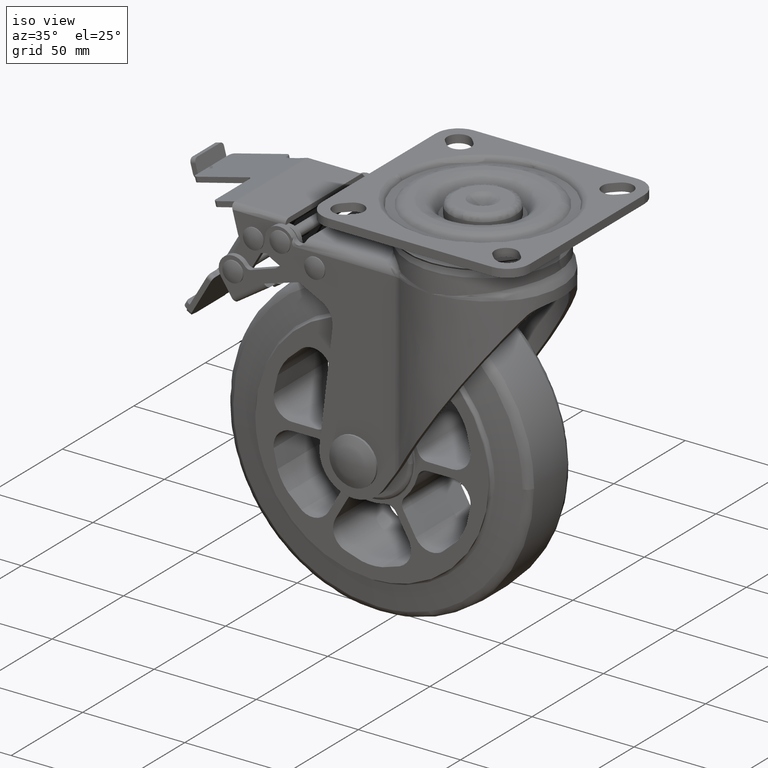
[diagram: clean part render]
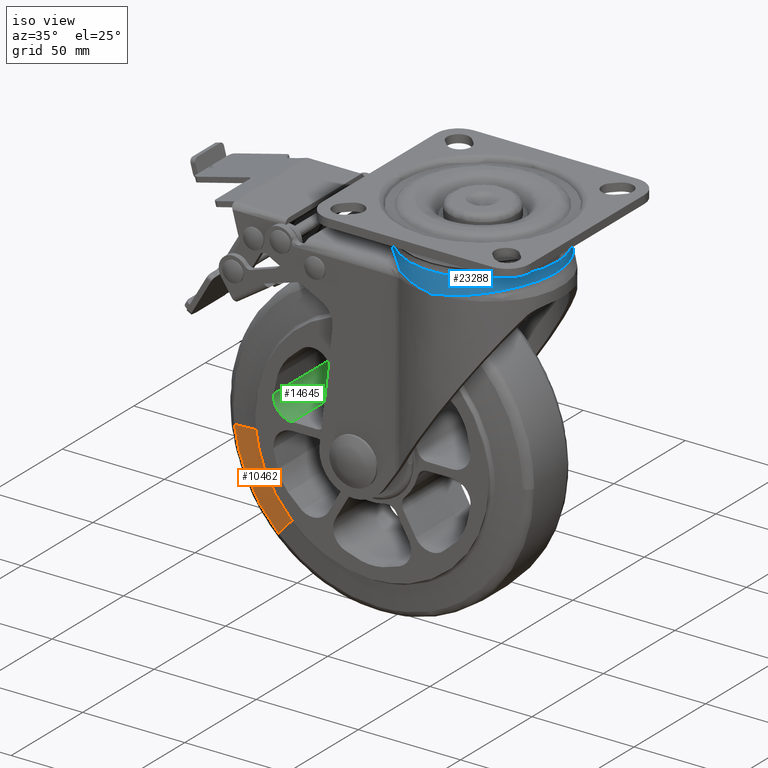
[diagram: same view with three faces highlighted in distinct colors, each labeled with its STEP entity id]
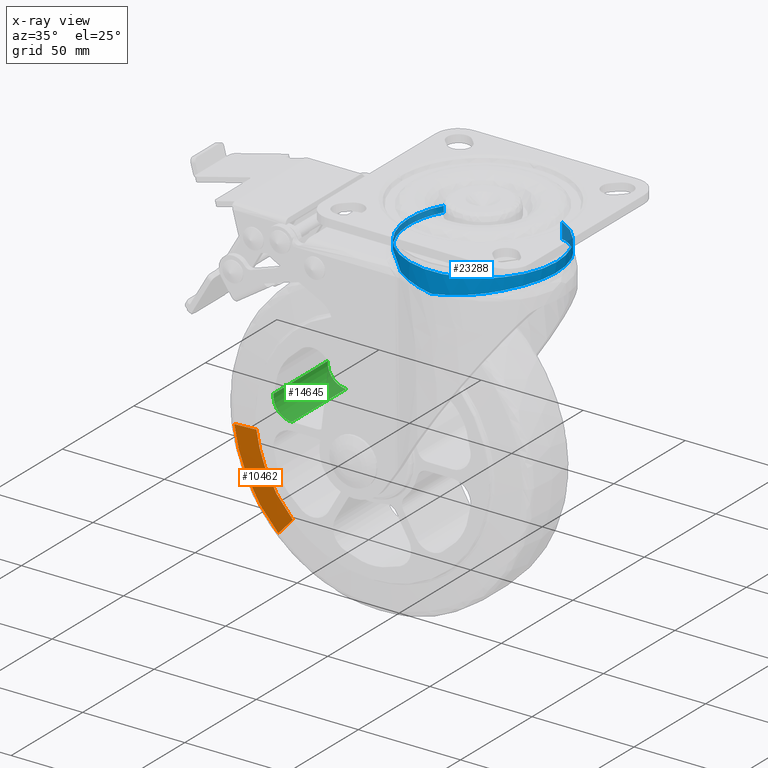
[diagram: x-ray of the same camera — body ghosted, the three highlighted faces saturated]
A machine part, iso view with three faces highlighted in distinct colors.
The next image is the same camera in x-ray (body ghosted, the three faces saturated) — at least one of them is partly hidden behind the body in this view.
Their STEP definitions:

[orange] entity #10462 — the highlighted face is a freeform B-spline surface patch.
#10228=CARTESIAN_POINT('',(-70.258905280563397,-14.952250988237960,-8.864752845747628));
#10229=VERTEX_POINT('',#10228);
#10239=CARTESIAN_POINT('',(-58.052917685253448,-16.870413375120979,-7.324690944148586));
#10240=VERTEX_POINT('',#10239);
#10241=CARTESIAN_POINT('',(-58.052917685253448,-16.870413375120979,-7.324690944148586));
#10242=CARTESIAN_POINT('',(-70.258905280563397,-14.952250988237960,-8.864752845747628));
#10243=QUASI_UNIFORM_CURVE('',1,(#10241,#10242),.UNSPECIFIED.,.F.,.U.);
#10244=EDGE_CURVE('',#10240,#10229,#10243,.T.);
#10317=CARTESIAN_POINT('',(-40.277815874930887,-16.870413374255239,-42.443961858727761));
#10318=VERTEX_POINT('',#10317);
#10330=CARTESIAN_POINT('',(-48.746476723513609,-14.952251073781181,-51.368068348709031));
#10331=VERTEX_POINT('',#10330);
#10332=CARTESIAN_POINT('',(-40.277815874930887,-16.870413374255239,-42.443961858727761));
#10333=CARTESIAN_POINT('',(-48.746476723513609,-14.952251073781181,-51.368068348709031));
#10334=QUASI_UNIFORM_CURVE('',1,(#10332,#10333),.UNSPECIFIED.,.F.,.U.);
#10335=EDGE_CURVE('',#10318,#10331,#10334,.T.);
#10422=CARTESIAN_POINT('',(-40.066099322091027,-16.918367436032710,-42.220859163152497));
#10423=CARTESIAN_POINT('',(-55.145472142640990,-16.918367436032710,-27.911068668167172));
#10424=CARTESIAN_POINT('',(-57.747767986779991,-16.918367436032707,-7.286189395524373));
#10425=CARTESIAN_POINT('',(-48.963487197810757,-14.903098047684891,-51.596749673501748));
#10426=CARTESIAN_POINT('',(-67.391502166638034,-14.903098047684900,-34.109216433193247));
#10427=CARTESIAN_POINT('',(-70.571683951371014,-14.903098047684894,-8.904216962090906));
#10435=(BOUNDED_SURFACE()B_SPLINE_SURFACE(2,1,((#10422,#10425),(#10423,#10426),(#10424,#10427)),.UNSPECIFIED.,.F.,.F.,.U.)B_SPLINE_SURFACE_WITH_KNOTS((3,3),(2,2),(0.0,51.727972167895373),(0.0,13.081748529178871),.UNSPECIFIED.)GEOMETRIC_REPRESENTATION_ITEM()RATIONAL_B_SPLINE_SURFACE(((1.0,1.0),(0.871126983722081,0.871126983722081),(0.855662221768731,0.855662221768731)))REPRESENTATION_ITEM('')SURFACE());
#10436=CARTESIAN_POINT('',(-48.746476723513609,-14.952251073781181,-51.368068348709031));
#10437=CARTESIAN_POINT('',(-51.867201397225529,-14.952251068024919,-48.407246350637173));
#10438=CARTESIAN_POINT('',(-56.895674466134189,-14.952251056760410,-42.678123363168709));
#10439=CARTESIAN_POINT('',(-62.012986761497302,-14.952251040443150,-34.509618182909378));
#10440=CARTESIAN_POINT('',(-65.352809485886709,-14.952251026400621,-27.543931837489389));
#10441=CARTESIAN_POINT('',(-68.333673432861801,-14.952251009994720,-19.461391555096480));
#10442=CARTESIAN_POINT('',(-69.736629376532150,-14.952250996772040,-13.007228464943850));
#10443=CARTESIAN_POINT('',(-70.258905280563397,-14.952250988237960,-8.864752845747628));
#10444=B_SPLINE_CURVE_WITH_KNOTS('',3,(#10436,#10437,#10438,#10439,#10440,#10441,#10442,#10443),.UNSPECIFIED.,.F.,.U.,(4,1,1,1,1,4),(0.000000017935854,12.905301670227731,22.774059055260221,28.847137288417780,36.058923550062723,48.584655850594821),.UNSPECIFIED.);
#10445=EDGE_CURVE('',#10331,#10229,#10444,.T.);
#10446=ORIENTED_EDGE('',*,*,#10445,.F.);
#10447=ORIENTED_EDGE('',*,*,#10335,.F.);
#10448=CARTESIAN_POINT('',(-40.277815874930887,-16.870413374255239,-42.443961858727761));
#10449=CARTESIAN_POINT('',(-42.325367041113147,-16.870413374290230,-40.501083474266217));
#10450=CARTESIAN_POINT('',(-46.279763753457367,-16.870413374375630,-36.163319062289837));
#10451=CARTESIAN_POINT('',(-50.766122314486829,-16.870413374527981,-29.450443894087581));
#10452=CARTESIAN_POINT('',(-53.619704614517090,-16.870413374672811,-23.619359353940560));
#10453=CARTESIAN_POINT('',(-56.320029909218022,-16.870413374856771,-16.589209278843011));
#10454=CARTESIAN_POINT('',(-57.543226403452920,-16.870413375002350,-11.369915258891920));
#10455=CARTESIAN_POINT('',(-58.052917685253448,-16.870413375120979,-7.324690944148586));
#10456=B_SPLINE_CURVE_WITH_KNOTS('',3,(#10448,#10449,#10450,#10451,#10452,#10453,#10454,#10455),.UNSPECIFIED.,.F.,.U.,(4,1,1,1,1,4),(0.000000019994957,8.467891742979518,17.563075637492279,24.149185965230370,27.912694666326281,40.144107575142073),.UNSPECIFIED.);
#10457=EDGE_CURVE('',#10318,#10240,#10456,.T.);
#10458=ORIENTED_EDGE('',*,*,#10457,.T.);
#10459=ORIENTED_EDGE('',*,*,#10244,.T.);
#10460=EDGE_LOOP('',(#10446,#10447,#10458,#10459));
#10461=FACE_OUTER_BOUND('',#10460,.T.);
#10462=ADVANCED_FACE('',(#10461),#10435,.T.);

[blue] entity #23288 — the highlighted face is a freeform B-spline surface patch.
#22810=CARTESIAN_POINT('',(9.442785473176604,17.634192388771432,96.650000000000006));
#22811=VERTEX_POINT('',#22810);
#22827=CARTESIAN_POINT('',(56.800499421672527,32.514102009316737,96.649999999990911));
#22828=VERTEX_POINT('',#22827);
#22837=CARTESIAN_POINT('',(56.800494636337589,32.514102865287647,88.985199179822473));
#22838=VERTEX_POINT('',#22837);
#22839=CARTESIAN_POINT('',(56.800499421672527,32.514102009316737,96.649999999990911));
#22840=CARTESIAN_POINT('',(56.800494636337589,32.514102865287647,88.985199179822473));
#22841=QUASI_UNIFORM_CURVE('',1,(#22839,#22840),.UNSPECIFIED.,.F.,.U.);
#22842=EDGE_CURVE('',#22828,#22838,#22841,.T.);
#22958=CARTESIAN_POINT('',(9.442784955161708,17.634192664078011,93.649990000000003));
#22959=VERTEX_POINT('',#22958);
#22967=CARTESIAN_POINT('',(9.442785473176604,17.634192388771432,96.650000000000006));
#22968=CARTESIAN_POINT('',(9.442784955161708,17.634192664078011,93.649990000000003));
#22969=QUASI_UNIFORM_CURVE('',1,(#22967,#22968),.UNSPECIFIED.,.F.,.U.);
#22970=EDGE_CURVE('',#22811,#22959,#22969,.T.);
#22975=CARTESIAN_POINT('',(56.800499169672428,32.514101529785037,96.900000250021364));
#22976=CARTESIAN_POINT('',(89.314600699457486,16.713602360112620,96.900000250021364));
#22977=CARTESIAN_POINT('',(73.514101529785052,-15.800499169672429,96.900000250021364));
#22978=CARTESIAN_POINT('',(57.713602360112624,-48.314600699457465,96.900000250021364));
#22979=CARTESIAN_POINT('',(25.199500830327569,-32.514101529785037,96.900000250021364));
#22980=CARTESIAN_POINT('',(-7.314600699457472,-16.713602360112620,96.900000250021364));
#22981=CARTESIAN_POINT('',(8.485898470214956,15.800499169672429,96.900000250021364));
#22982=CARTESIAN_POINT('',(8.938101968097405,16.731038786452057,96.900000250021378));
#22983=CARTESIAN_POINT('',(9.442784987645419,17.634192722209086,96.900000250021378));
#22984=CARTESIAN_POINT('',(56.800499169672428,32.514101529785037,86.393739743749464));
#22985=CARTESIAN_POINT('',(89.314600699457486,16.713602360112620,86.393739743749464));
#22986=CARTESIAN_POINT('',(73.514101529785052,-15.800499169672429,86.393739743749464));
#22987=CARTESIAN_POINT('',(57.713602360112624,-48.314600699457465,86.393739743749464));
#22988=CARTESIAN_POINT('',(25.199500830327569,-32.514101529785037,86.393739743749464));
#22989=CARTESIAN_POINT('',(-7.314600699457472,-16.713602360112620,86.393739743749464));
#22990=CARTESIAN_POINT('',(8.485898470214956,15.800499169672429,86.393739743749464));
#22991=CARTESIAN_POINT('',(8.938101968097405,16.731038786452057,86.393739743749478));
#22992=CARTESIAN_POINT('',(9.442784987645419,17.634192722209086,86.393739743749464));
#23000=(BOUNDED_SURFACE()B_SPLINE_SURFACE(2,1,((#22975,#22984),(#22976,#22985),(#22977,#22986),(#22978,#22987),(#22979,#22988),(#22980,#22989),(#22981,#22990),(#22982,#22991),(#22983,#22992)),.UNSPECIFIED.,.F.,.F.,.U.)B_SPLINE_SURFACE_WITH_KNOTS((3,2,2,2,3),(2,2),(0.0,59.895282776003533,119.790565552007100,179.685848328010590,182.081659639050710),(0.0,10.506260506271911),.UNSPECIFIED.)GEOMETRIC_REPRESENTATION_ITEM()RATIONAL_B_SPLINE_SURFACE(((1.0,1.0),(0.707106781186548,0.707106781186548),(1.0,1.0),(0.707106781186548,0.707106781186548),(1.0,1.0),(0.707106781186548,0.707106781186548),(1.0,1.0),(0.988284271247462,0.988284271247462),(0.977505800795127,0.977505800795127)))REPRESENTATION_ITEM('')SURFACE());
#23001=CARTESIAN_POINT('',(4.849999000000153,0.0,96.650000000000006));
#23002=VERTEX_POINT('',#23001);
#23003=CARTESIAN_POINT('',(4.849999000000153,0.0,96.650000000000006));
#23004=CARTESIAN_POINT('',(4.849744173669127,2.206721847110803,96.649999999999963));
#23005=CARTESIAN_POINT('',(5.176149943010742,5.756518258649088,96.650000000000233));
#23006=CARTESIAN_POINT('',(6.631098112192496,11.731894522257100,96.649999999999309));
#23007=CARTESIAN_POINT('',(8.178745301037857,15.373002093727070,96.650000000001000));
#23008=CARTESIAN_POINT('',(9.442785473176604,17.634192388771432,96.650000000000006));
#23009=B_SPLINE_CURVE_WITH_KNOTS('',3,(#23003,#23004,#23005,#23006,#23007,#23008),.UNSPECIFIED.,.F.,.U.,(4,1,1,4),(0.000000012231936,6.620121689858550,10.649739648928749,18.421179464520989),.UNSPECIFIED.);
#23010=EDGE_CURVE('',#23002,#22811,#23009,.T.);
#23011=ORIENTED_EDGE('',*,*,#23010,.T.);
#23012=ORIENTED_EDGE('',*,*,#22970,.T.);
#23013=CARTESIAN_POINT('',(14.822412462481660,-24.931034535605651,93.649990000000003));
#23014=VERTEX_POINT('',#23013);
#23015=CARTESIAN_POINT('',(9.442784955161708,17.634192664078011,93.649990000000003));
#23016=CARTESIAN_POINT('',(9.383959101479896,17.530062657962670,93.649989999999974));
#23017=CARTESIAN_POINT('',(9.298574205032717,17.372285309283811,93.649990000000003));
#23018=CARTESIAN_POINT('',(9.183542497960138,17.162530414949760,93.649989999999988));
#23019=CARTESIAN_POINT('',(8.165996913597812,15.265060724839220,93.649990000000003));
#23020=CARTESIAN_POINT('',(6.533047558693761,11.459171051382430,93.649990000000415));
#23021=CARTESIAN_POINT('',(5.266866780790098,6.207861695520858,93.649989999999164));
#23022=CARTESIAN_POINT('',(4.776584498283024,1.200505172202812,93.649990000001281));
#23023=CARTESIAN_POINT('',(4.906503516318487,-3.713791628653056,93.649989999999235));
#23024=CARTESIAN_POINT('',(5.953018339261582,-9.621407934469808,93.649990000000116));
#23025=CARTESIAN_POINT('',(8.161500246185906,-15.597204520271809,93.649990000000656));
#23026=CARTESIAN_POINT('',(11.297144333267489,-20.855302979444140,93.649989999999121));
#23027=CARTESIAN_POINT('',(13.667480650665651,-23.718443838012160,93.649989999999974));
#23028=CARTESIAN_POINT('',(14.822412462481660,-24.931034535605651,93.649990000000003));
#23029=B_SPLINE_CURVE_WITH_KNOTS('',3,(#23015,#23016,#23017,#23018,#23019,#23020,#23021,#23022,#23023,#23024,#23025,#23026,#23027,#23028),.UNSPECIFIED.,.F.,.U.,(4,1,1,1,1,1,1,1,1,1,1,4),(-0.000002744281119,0.358771903216649,0.538194533448248,0.717684542597546,6.818015789854464,12.918356195521890,16.865643441551391,21.889445486076632,27.630909499010951,34.807789474189043,40.908138874676943,45.931928804428587),.UNSPECIFIED.);
#23030=EDGE_CURVE('',#22959,#23014,#23029,.T.);
#23031=ORIENTED_EDGE('',*,*,#23030,.T.);
#23032=CARTESIAN_POINT('',(21.645140924501401,-30.532147033374251,90.143474131457296));
#23033=VERTEX_POINT('',#23032);
#23034=CARTESIAN_POINT('',(14.822412462481660,-24.931034535605651,93.649990000000003));
#23035=CARTESIAN_POINT('',(15.105277773606080,-25.228043126753828,93.649990000000017));
#23036=CARTESIAN_POINT('',(15.390298714148800,-25.517205201015781,93.627951426924284));
#23037=CARTESIAN_POINT('',(15.964771521970469,-26.081063940608988,93.545187391994503));
#23038=CARTESIAN_POINT('',(16.254222024299850,-26.355755234871658,93.484434770451927));
#23039=CARTESIAN_POINT('',(16.837461485865010,-26.891468799157380,93.327016373048622));
#23040=CARTESIAN_POINT('',(17.131251274781800,-27.152488803250421,93.230345113472893));
#23041=CARTESIAN_POINT('',(17.574972178563389,-27.534137071451411,93.058949738624833));
#23042=CARTESIAN_POINT('',(17.723409789652219,-27.659725852177122,92.997392631851042));
#23043=CARTESIAN_POINT('',(18.021128405639800,-27.907553570457580,92.865390202560889));
#23044=CARTESIAN_POINT('',(18.169326093710289,-28.028892002357860,92.795427106439845));
#23045=CARTESIAN_POINT('',(18.611829703315379,-28.385488289747471,92.573844357402521));
#23046=CARTESIAN_POINT('',(18.904076171020218,-28.613352126995071,92.410605727554952));
#23047=CARTESIAN_POINT('',(19.481848848584178,-29.050351819286320,92.052400657481058));
#23048=CARTESIAN_POINT('',(19.767392375880078,-29.259491691754491,91.857465287624848));
#23049=CARTESIAN_POINT('',(20.188906473236440,-29.559274104588791,91.538710770623794));
#23050=CARTESIAN_POINT('',(20.328267258036711,-29.656873496809371,91.428043643305188));
#23051=CARTESIAN_POINT('',(20.535240651256910,-29.799718523221870,91.254810695189462));
#23052=CARTESIAN_POINT('',(20.603886068790061,-29.846740582191011,91.195858653411037));
#23053=CARTESIAN_POINT('',(20.740411298946619,-29.939580032786939,91.075404244409853));
#23054=CARTESIAN_POINT('',(20.808384324410671,-29.985459682419531,91.013814269104316));
#23055=CARTESIAN_POINT('',(21.144894390933452,-30.210964434462628,90.700231547870843));
#23056=CARTESIAN_POINT('',(21.402759432755179,-30.378497189813260,90.432405417557035));
#23057=CARTESIAN_POINT('',(21.645140924501401,-30.532147033374251,90.143474131457296));
#23058=B_SPLINE_CURVE_WITH_KNOTS('',3,(#23034,#23035,#23036,#23037,#23038,#23039,#23040,#23041,#23042,#23043,#23044,#23045,#23046,#23047,#23048,#23049,#23050,#23051,#23052,#23053,#23054,#23055,#23056,#23057),.UNSPECIFIED.,.F.,.U.,(4,2,2,2,2,2,2,2,2,2,2,4),(0.0,0.124999999999998,0.249999999999996,0.374999999999994,0.437499999999994,0.499999999999994,0.624999999999995,0.749999999999996,0.812499999999996,0.843749999999996,0.874999999999997,1.0),.UNSPECIFIED.);
#23059=EDGE_CURVE('',#23014,#23033,#23058,.T.);
#23060=ORIENTED_EDGE('',*,*,#23059,.T.);
#23061=CARTESIAN_POINT('',(22.697181491687399,-31.174178528900551,89.369173718511490));
#23062=VERTEX_POINT('',#23061);
#23063=CARTESIAN_POINT('',(22.697181491687399,-31.174178528900551,89.369173718511490));
#23064=CARTESIAN_POINT('',(22.590382160845881,-31.111475071698319,89.385711755113277));
#23065=CARTESIAN_POINT('',(22.489781021950769,-31.051684478437071,89.424263196236325));
#23066=CARTESIAN_POINT('',(22.344604954797031,-30.964527992904141,89.502159293440570));
#23067=CARTESIAN_POINT('',(22.297757144815780,-30.936248918608179,89.531254492094419));
#23068=CARTESIAN_POINT('',(22.207066535903959,-30.881240855613850,89.593636467489389));
#23069=CARTESIAN_POINT('',(22.163088543217849,-30.854430358977829,89.627008971553238));
#23070=CARTESIAN_POINT('',(22.034311472764649,-30.775564427294832,89.732136619791504));
#23071=CARTESIAN_POINT('',(21.952616746892641,-30.725045545523621,89.808816296967279));
#23072=CARTESIAN_POINT('',(21.794679958878660,-30.626572036115281,89.970724924139759));
#23073=CARTESIAN_POINT('',(21.718674989517119,-30.578761556227100,90.055817719144045));
#23074=CARTESIAN_POINT('',(21.645140924501401,-30.532147033374251,90.143474131457296));
#23075=B_SPLINE_CURVE_WITH_KNOTS('',3,(#23063,#23064,#23065,#23066,#23067,#23068,#23069,#23070,#23071,#23072,#23073,#23074),.UNSPECIFIED.,.F.,.U.,(4,2,2,2,2,4),(0.0,0.249999999999989,0.374999999999989,0.499999999999989,0.749999999999995,1.0),.UNSPECIFIED.);
#23076=EDGE_CURVE('',#23062,#23033,#23075,.T.);
#23077=ORIENTED_EDGE('',*,*,#23076,.F.);
#23078=CARTESIAN_POINT('',(41.0,-36.149993999999850,86.649990000000003));
#23079=VERTEX_POINT('',#23078);
#23080=CARTESIAN_POINT('',(22.697181491687399,-31.174178528900551,89.369173718511490));
#23081=CARTESIAN_POINT('',(24.079730605754349,-31.985892868168111,89.155083914090952));
#23082=CARTESIAN_POINT('',(25.508689979939948,-32.701718890742988,88.937309687174917));
#23083=CARTESIAN_POINT('',(27.352457996742331,-33.477262159092028,88.659568996589869));
#23084=CARTESIAN_POINT('',(27.724101834156659,-33.626384422726943,88.603743586361375));
#23085=CARTESIAN_POINT('',(28.473206358678869,-33.912573205176763,88.491510263604297));
#23086=CARTESIAN_POINT('',(28.849822559577259,-34.049312222176269,88.435228945318798));
#23087=CARTESIAN_POINT('',(29.984664691892121,-34.440166108463544,88.266030366554546));
#23088=CARTESIAN_POINT('',(31.512082795230071,-34.910090714679043,88.039338866071859));
#23089=CARTESIAN_POINT('',(33.067887718000868,-35.278112722518287,87.810086292506568));
#23090=CARTESIAN_POINT('',(34.245449363650238,-35.515611156236723,87.637030574868746));
#23091=CARTESIAN_POINT('',(34.639796275037860,-35.588342493649087,87.579153361750556));
#23092=CARTESIAN_POINT('',(35.429009473058272,-35.720391307803887,87.463448778403063));
#23093=CARTESIAN_POINT('',(35.824255463008313,-35.779790164543329,87.405565586453761));
#23094=CARTESIAN_POINT('',(37.011895882276292,-35.938214166746818,87.231784996874666));
#23095=CARTESIAN_POINT('',(37.806191520820967,-36.017488086632419,87.115762283353362));
#23096=CARTESIAN_POINT('',(39.001406280592157,-36.096913570470292,86.941276320530633));
#23097=CARTESIAN_POINT('',(39.400441528344970,-36.116802492914672,86.883047615965665));
#23098=CARTESIAN_POINT('',(39.999926364074192,-36.136711532047109,86.795482194688191));
#23099=CARTESIAN_POINT('',(40.199912594342813,-36.141693482640129,86.766274364775725));
#23100=CARTESIAN_POINT('',(40.500098630132740,-36.146676098038533,86.722221220756637));
#23101=CARTESIAN_POINT('',(40.600200780025979,-36.147921898760892,86.707535463940687));
#23102=CARTESIAN_POINT('',(40.725324351651579,-36.148959222424587,86.688804934330875));
#23103=CARTESIAN_POINT('',(40.750391996856273,-36.149142072257717,86.684770037212374));
#23104=CARTESIAN_POINT('',(40.800313169257613,-36.149449333109352,86.677814089438499));
#23105=CARTESIAN_POINT('',(40.825273835571281,-36.149577356829390,86.674336104388786));
#23106=CARTESIAN_POINT('',(40.900156074848823,-36.149884608681901,86.663902115751284));
#23107=CARTESIAN_POINT('',(40.950077866248201,-36.149994017781367,86.656946081727128));
#23108=CARTESIAN_POINT('',(41.0,-36.149993999999850,86.649990000000003));
#23109=B_SPLINE_CURVE_WITH_KNOTS('',3,(#23080,#23081,#23082,#23083,#23084,#23085,#23086,#23087,#23088,#23089,#23090,#23091,#23092,#23093,#23094,#23095,#23096,#23097,#23098,#23099,#23100,#23101,#23102,#23103,#23104,#23105,#23106,#23107,#23108),.UNSPECIFIED.,.F.,.U.,(4,2,2,2,1,2,2,2,2,2,2,2,2,2,4),(0.0,0.249999999999999,0.312499999999999,0.374999999999999,0.499999999999998,0.624999999999998,0.687499999999997,0.749999999999997,0.874999999999996,0.937499999999996,0.968749999999996,0.984374999999997,0.988281249999997,0.992187499999998,1.0),.UNSPECIFIED.);
#23110=EDGE_CURVE('',#23062,#23079,#23109,.T.);
#23111=ORIENTED_EDGE('',*,*,#23110,.T.);
#23112=CARTESIAN_POINT('',(67.654782096711500,-24.420179435802901,90.723534106360404));
#23113=VERTEX_POINT('',#23112);
#23114=CARTESIAN_POINT('',(41.0,-36.149993999999850,86.649990000000003));
#23115=CARTESIAN_POINT('',(41.038801415166212,-36.149994008551040,86.655396536034146));
#23116=CARTESIAN_POINT('',(41.097003244746773,-36.149900315211873,86.663506299235593));
#23117=CARTESIAN_POINT('',(41.164904866219693,-36.149627022885859,86.672967618151361));
#23118=CARTESIAN_POINT('',(41.194005451199232,-36.149474758058162,86.677022453796724));
#23119=CARTESIAN_POINT('',(41.213405816754907,-36.149365439345388,86.679725674156160));
#23120=CARTESIAN_POINT('',(41.223023955878972,-36.149307410437402,86.680967011096584));
#23121=CARTESIAN_POINT('',(41.311282510395159,-36.148738973391588,86.694420130795578));
#23122=CARTESIAN_POINT('',(41.389769546590202,-36.147977944809298,86.705975866935233));
#23123=CARTESIAN_POINT('',(41.625155990286679,-36.144928906117279,86.740663473612216));
#23124=CARTESIAN_POINT('',(41.782013217665472,-36.141874958930707,86.763593794052454));
#23125=CARTESIAN_POINT('',(42.252303741858540,-36.129658003500047,86.832352326833202));
#23126=CARTESIAN_POINT('',(42.565469649891462,-36.117440393491933,86.878054357598714));
#23127=CARTESIAN_POINT('',(43.503847105775577,-36.068618955047349,87.015034072821393));
#23128=CARTESIAN_POINT('',(44.127945671792617,-36.019854605220679,87.106140765581074));
#23129=CARTESIAN_POINT('',(45.373149924274138,-35.889964501043629,87.288111117453823));
#23130=CARTESIAN_POINT('',(45.994256582397043,-35.808838825153693,87.378968187690276));
#23131=CARTESIAN_POINT('',(46.923648828523412,-35.662738260532940,87.515139069652577));
#23132=CARTESIAN_POINT('',(47.233187140172006,-35.609945340780918,87.560527581655052));
#23133=CARTESIAN_POINT('',(47.850998764094740,-35.496262574285190,87.651204435042871));
#23134=CARTESIAN_POINT('',(48.158528888954102,-35.435512858443182,87.696383676439154));
#23135=CARTESIAN_POINT('',(49.689374071259770,-35.112442693469731,87.921522804003871));
#23136=CARTESIAN_POINT('',(50.892327854430832,-34.792314556520928,88.099219419382436));
#23137=CARTESIAN_POINT('',(53.255750205483999,-34.031748956366613,88.450633151295762));
#23138=CARTESIAN_POINT('',(54.416217130326721,-33.591305804962573,88.624347635762575));
#23139=CARTESIAN_POINT('',(56.124751920456241,-32.839782724136072,88.882452043126221));
#23140=CARTESIAN_POINT('',(56.688892199307581,-32.574102567121550,88.968074661862275));
#23141=CARTESIAN_POINT('',(57.526910629984812,-32.152470966725467,89.095948637082927));
#23142=CARTESIAN_POINT('',(57.804884074103803,-32.008073230968392,89.138479932324472));
#23143=CARTESIAN_POINT('',(58.358067617567542,-31.711486570971260,89.223365134124776));
#23144=CARTESIAN_POINT('',(58.633636609748223,-31.559086281530899,89.265774629743802));
#23145=CARTESIAN_POINT('',(59.997961430687447,-30.781138815553589,89.476393393428950));
#23146=CARTESIAN_POINT('',(61.048947522980782,-30.106665124498111,89.640735588165825));
#23147=CARTESIAN_POINT('',(63.072154770819743,-28.656440895498079,89.962043019693226));
#23148=CARTESIAN_POINT('',(64.044371010251226,-27.880683568616821,90.119005509999454));
#23149=CARTESIAN_POINT('',(65.909662283425121,-26.227548685399150,90.426204624867296));
#23150=CARTESIAN_POINT('',(66.802746082370149,-25.350181919836480,90.576439726238291));
#23151=CARTESIAN_POINT('',(67.654782096711500,-24.420179435802901,90.723534106360404));
#23152=B_SPLINE_CURVE_WITH_KNOTS('',3,(#23114,#23115,#23116,#23117,#23118,#23119,#23120,#23121,#23122,#23123,#23124,#23125,#23126,#23127,#23128,#23129,#23130,#23131,#23132,#23133,#23134,#23135,#23136,#23137,#23138,#23139,#23140,#23141,#23142,#23143,#23144,#23145,#23146,#23147,#23148,#23149,#23150,#23151),.UNSPECIFIED.,.F.,.U.,(4,1,1,2,2,2,2,2,2,2,2,2,2,2,2,2,2,2,2,4),(0.0,0.003906249999996,0.005859374999995,0.006835937499994,0.007812499999994,0.015624999999994,0.031249999999994,0.062499999999994,0.124999999999994,0.187499999999994,0.218749999999995,0.249999999999995,0.374999999999996,0.499999999999997,0.562499999999997,0.593749999999997,0.624999999999997,0.749999999999998,0.874999999999999,1.0),.UNSPECIFIED.);
#23153=EDGE_CURVE('',#23079,#23113,#23152,.T.);
#23154=ORIENTED_EDGE('',*,*,#23153,.T.);
#23155=CARTESIAN_POINT('',(67.654782096711500,24.420179435803000,90.723534106360901));
#23156=VERTEX_POINT('',#23155);
#23157=CARTESIAN_POINT('',(67.654782096711500,-24.420179435802901,90.723534106360404));
#23158=CARTESIAN_POINT('',(68.412256669394665,-23.593391093327959,90.854303523206468));
#23159=CARTESIAN_POINT('',(69.129737936841835,-22.733172335943170,90.969350815369467));
#23160=CARTESIAN_POINT('',(70.145635523243101,-21.393192360749641,91.124456377472697));
#23161=CARTESIAN_POINT('',(70.474201708456675,-20.938242760146199,91.173209949452769));
#23162=CARTESIAN_POINT('',(70.951788436792370,-20.243318471066569,91.242426011133020));
#23163=CARTESIAN_POINT('',(71.108506050675487,-20.009479188679421,91.264853214970614));
#23164=CARTESIAN_POINT('',(71.415655053462288,-19.539429921943821,91.308308274460728));
#23165=CARTESIAN_POINT('',(71.566233574513859,-19.303012022122410,91.329357705310755));
#23166=CARTESIAN_POINT('',(72.304279572465418,-18.114028400003129,91.431422107951207));
#23167=CARTESIAN_POINT('',(72.847300750907408,-17.140826912222060,91.502964038038982));
#23168=CARTESIAN_POINT('',(73.840392484644141,-15.151472991363949,91.629792571626311));
#23169=CARTESIAN_POINT('',(74.290461023420065,-14.135318384039550,91.685057237628413));
#23170=CARTESIAN_POINT('',(75.097193455099131,-12.059992514739159,91.781755044719119));
#23171=CARTESIAN_POINT('',(75.453864907497120,-11.000824101676580,91.823178316163251));
#23172=CARTESIAN_POINT('',(75.839547278472409,-9.649224869702302,91.867196118413332));
#23173=CARTESIAN_POINT('',(75.913717191468237,-9.377336316210442,91.875614805979026));
#23174=CARTESIAN_POINT('',(76.055751138330876,-8.831556863914642,91.891662276816092));
#23175=CARTESIAN_POINT('',(76.123438018499513,-8.558365336092285,91.899271136073253));
#23176=CARTESIAN_POINT('',(76.316615361055383,-7.737895346985561,91.920897194136344));
#23177=CARTESIAN_POINT('',(76.432228122638691,-7.189721998450480,91.933715698079467));
#23178=CARTESIAN_POINT('',(76.740195965674829,-5.541682419088525,91.967656858154456));
#23179=CARTESIAN_POINT('',(76.893762616325247,-4.438304226622498,91.984289523602129));
#23180=CARTESIAN_POINT('',(77.098782270735938,-2.222309099824469,92.006421407645490));
#23181=CARTESIAN_POINT('',(77.150235100595268,-1.109692129796080,92.011918584492975));
#23182=CARTESIAN_POINT('',(77.149882751306507,0.566246328549593,92.011880809228032));
#23183=CARTESIAN_POINT('',(77.136822898078933,1.126063201840387,92.010481899718528));
#23184=CARTESIAN_POINT('',(77.097507989535885,1.967572881954190,92.006259525302951));
#23185=CARTESIAN_POINT('',(77.081114105639969,2.248373631961521,92.004497685861381));
#23186=CARTESIAN_POINT('',(77.041679190282423,2.810576495644942,92.000253082374286));
#23187=CARTESIAN_POINT('',(77.018621244996979,3.092045221049079,91.997768480013306));
#23188=CARTESIAN_POINT('',(76.887315157521087,4.493456010453477,91.983591495255254));
#23189=CARTESIAN_POINT('',(76.730766682640024,5.601572453650149,91.966628279564546));
#23190=CARTESIAN_POINT('',(76.317725145006861,7.792534392898238,91.921085130889693));
#23191=CARTESIAN_POINT('',(76.061224395632507,8.875378044621760,91.892507758981495));
#23192=CARTESIAN_POINT('',(75.448693947083058,11.015864782033701,91.822576163860802));
#23193=CARTESIAN_POINT('',(75.092667597940320,12.073508949078420,91.781230486701602));
#23194=CARTESIAN_POINT('',(74.584097701550007,13.379443869119820,91.720248865336856));
#23195=CARTESIAN_POINT('',(74.479200380409551,13.639823139600271,91.707584821572212));
#23196=CARTESIAN_POINT('',(74.262978959371694,14.158949965996310,91.681276277117348));
#23197=CARTESIAN_POINT('',(74.151500242458241,14.418038868541791,91.667612591448304));
#23198=CARTESIAN_POINT('',(73.808673739353779,15.189814453331230,91.625243057364017));
#23199=CARTESIAN_POINT('',(73.569020039618508,15.696947306954019,91.595172159540127));
#23200=CARTESIAN_POINT('',(72.817446567408197,17.196606101891430,91.499071901935650));
#23201=CARTESIAN_POINT('',(72.272979693065651,18.167439287705442,91.427203837960761));
#23202=CARTESIAN_POINT('',(71.099221656532421,20.052230918934900,91.264659089498380));
#23203=CARTESIAN_POINT('',(70.469924129853666,20.966188464990530,91.174016672520125));
#23204=CARTESIAN_POINT('',(69.126477010990257,22.736727511211232,90.968803856337274));
#23205=CARTESIAN_POINT('',(68.412325763699570,23.593315676452129,90.854315451556872));
#23206=CARTESIAN_POINT('',(67.654782096711500,24.420179435803000,90.723534106360802));
#23207=B_SPLINE_CURVE_WITH_KNOTS('',3,(#23157,#23158,#23159,#23160,#23161,#23162,#23163,#23164,#23165,#23166,#23167,#23168,#23169,#23170,#23171,#23172,#23173,#23174,#23175,#23176,#23177,#23178,#23179,#23180,#23181,#23182,#23183,#23184,#23185,#23186,#23187,#23188,#23189,#23190,#23191,#23192,#23193,#23194,#23195,#23196,#23197,#23198,#23199,#23200,#23201,#23202,#23203,#23204,#23205,#23206),.UNSPECIFIED.,.F.,.U.,(4,2,2,2,2,2,2,2,2,2,2,2,2,2,2,2,2,2,2,2,2,2,2,2,4),(0.0,0.062499999999999,0.093749999999999,0.109374999999998,0.124999999999998,0.187499999999997,0.249999999999997,0.312499999999996,0.328124999999996,0.343749999999996,0.374999999999996,0.437499999999996,0.499999999999995,0.531249999999995,0.546874999999995,0.562499999999995,0.624999999999995,0.687499999999995,0.749999999999995,0.765624999999995,0.781249999999995,0.812499999999996,0.874999999999997,0.937499999999999,1.0),.UNSPECIFIED.);
#23208=EDGE_CURVE('',#23113,#23156,#23207,.T.);
#23209=ORIENTED_EDGE('',*,*,#23208,.T.);
#23210=CARTESIAN_POINT('',(67.654782096711500,24.420179435803000,90.723534106360901));
#23211=CARTESIAN_POINT('',(66.802746131736484,25.350181975133651,90.576439578408710));
#23212=CARTESIAN_POINT('',(65.909662382230124,26.227548796074469,90.426204328990906));
#23213=CARTESIAN_POINT('',(64.044371208073372,27.880683790204959,90.119004917611036));
#23214=CARTESIAN_POINT('',(63.072155018220371,28.656441172620870,89.962042278839562));
#23215=CARTESIAN_POINT('',(61.048947869677512,30.106665512846199,89.640734549964705));
#23216=CARTESIAN_POINT('',(59.997961827101840,30.781139259592312,89.476392206345622));
#23217=CARTESIAN_POINT('',(58.633637068399253,31.559086795283211,89.265773256289677));
#23218=CARTESIAN_POINT('',(58.358068088677598,31.711487098679381,89.223363723361487));
#23219=CARTESIAN_POINT('',(57.804884570003871,32.008073786444747,89.138478447326193));
#23220=CARTESIAN_POINT('',(57.526911138232443,32.152471536032778,89.095947115109297));
#23221=CARTESIAN_POINT('',(57.098932012612721,32.367800391224939,89.030641341627032));
#23222=CARTESIAN_POINT('',(56.949905768479397,32.441494731496412,89.007933839031011));
#23223=CARTESIAN_POINT('',(56.800494636337589,32.514102865287647,88.985199179822473));
#23224=B_SPLINE_CURVE_WITH_KNOTS('',3,(#23210,#23211,#23212,#23213,#23214,#23215,#23216,#23217,#23218,#23219,#23220,#23221,#23222,#23223),.UNSPECIFIED.,.F.,.U.,(4,2,2,2,2,2,4),(0.0,0.125000000000000,0.250000000000000,0.374999999999999,0.406249999999999,0.437499999999999,0.454128475371024),.UNSPECIFIED.);
#23225=EDGE_CURVE('',#23156,#22838,#23224,.T.);
#23226=ORIENTED_EDGE('',*,*,#23225,.T.);
#23227=ORIENTED_EDGE('',*,*,#22842,.F.);
#23228=CARTESIAN_POINT('',(77.150000999999861,0.0,96.650000000000006));
#23229=VERTEX_POINT('',#23228);
#23230=CARTESIAN_POINT('',(56.800499421672527,32.514102009316737,96.649999999990911));
#23231=CARTESIAN_POINT('',(58.221029622571173,31.823833251204320,96.649999999991209));
#23232=CARTESIAN_POINT('',(61.338186370212469,30.047814072527800,96.649999999991479));
#23233=CARTESIAN_POINT('',(65.407586498817153,26.847519735932469,96.649999999992488));
#23234=CARTESIAN_POINT('',(68.881410717539552,23.161669948302450,96.649999999993554));
#23235=CARTESIAN_POINT('',(71.612627442809426,19.408850953868271,96.649999999994634));
#23236=CARTESIAN_POINT('',(74.000890979525451,15.062464001140510,96.649999999995742));
#23237=CARTESIAN_POINT('',(75.704383251069700,10.512534970787261,96.649999999997064));
#23238=CARTESIAN_POINT('',(76.869555982546487,5.369799907584657,96.649999999998613));
#23239=CARTESIAN_POINT('',(77.150162075817974,2.000540127792273,96.649999999999309));
#23240=CARTESIAN_POINT('',(77.150000999999861,0.0,96.650000000000006));
#23241=B_SPLINE_CURVE_WITH_KNOTS('',3,(#23230,#23231,#23232,#23233,#23234,#23235,#23236,#23237,#23238,#23239,#23240),.UNSPECIFIED.,.F.,.U.,(4,1,1,1,1,1,1,1,4),(0.000000038611866,4.738094988724591,10.739729209469850,15.477875392223750,19.900103058877210,24.638165116218801,30.323937771467019,34.430306025529539,40.431917006905081),.UNSPECIFIED.);
#23242=EDGE_CURVE('',#22828,#23229,#23241,.T.);
#23243=ORIENTED_EDGE('',*,*,#23242,.T.);
#23244=CARTESIAN_POINT('',(61.879254961433503,-29.510666362443221,96.650000000020839));
#23245=VERTEX_POINT('',#23244);
#23246=CARTESIAN_POINT('',(77.150000999999861,0.0,96.650000000000006));
#23247=CARTESIAN_POINT('',(77.150452926472440,-2.517483167665046,96.650000000001654));
#23248=CARTESIAN_POINT('',(76.772726779928391,-6.113634259585211,96.650000000003260));
#23249=CARTESIAN_POINT('',(75.462599159087446,-11.166498902406101,96.650000000007026));
#23250=CARTESIAN_POINT('',(73.787487879622887,-15.542635404235030,96.650000000009086));
#23251=CARTESIAN_POINT('',(70.944823617608336,-20.567920490772838,96.650000000013350));
#23252=CARTESIAN_POINT('',(66.939868839984783,-25.455460524368672,96.650000000017641));
#23253=CARTESIAN_POINT('',(63.640885326665632,-28.264542802625389,96.650000000018963));
#23254=CARTESIAN_POINT('',(61.879254961433503,-29.510666362443221,96.650000000020839));
#23255=B_SPLINE_CURVE_WITH_KNOTS('',3,(#23246,#23247,#23248,#23249,#23250,#23251,#23252,#23253,#23254),.UNSPECIFIED.,.F.,.U.,(4,1,1,1,1,1,4),(0.000000047180023,7.552327782252601,10.789041610344830,15.644151351900870,21.578075948569211,28.051505860253769,34.524928546997081),.UNSPECIFIED.);
#23256=EDGE_CURVE('',#23229,#23245,#23255,.T.);
#23257=ORIENTED_EDGE('',*,*,#23256,.T.);
#23258=CARTESIAN_POINT('',(11.489333637556779,-20.879254961433521,96.650000000020839));
#23259=VERTEX_POINT('',#23258);
#23260=CARTESIAN_POINT('',(61.879254961433503,-29.510666362443221,96.650000000020839));
#23261=CARTESIAN_POINT('',(60.310010667711403,-30.621090603359761,96.650000000021166));
#23262=CARTESIAN_POINT('',(57.631498765709573,-32.211829689108100,96.650000000020668));
#23263=CARTESIAN_POINT('',(53.145067168644957,-34.146486398011653,96.650000000020370));
#23264=CARTESIAN_POINT('',(48.235061059309018,-35.582069781653210,96.650000000022573));
#23265=CARTESIAN_POINT('',(41.972137915289181,-36.348855615296330,96.650000000018835));
#23266=CARTESIAN_POINT('',(36.041269971557327,-35.960824052822673,96.650000000020540));
#23267=CARTESIAN_POINT('',(31.200626672018210,-34.868840347316613,96.650000000020157));
#23268=CARTESIAN_POINT('',(27.557926024492492,-33.624504837557453,96.650000000022743));
#23269=CARTESIAN_POINT('',(23.857197225245560,-31.925406103585821,96.650000000015766));
#23270=CARTESIAN_POINT('',(19.624354243146659,-29.330030195896569,96.650000000023837));
#23271=CARTESIAN_POINT('',(15.266739532699891,-25.633579669643201,96.650000000021635));
#23272=CARTESIAN_POINT('',(12.642239527935290,-22.509016869948699,96.650000000017243));
#23273=CARTESIAN_POINT('',(11.489333637556779,-20.879254961433521,96.650000000020839));
#23274=B_SPLINE_CURVE_WITH_KNOTS('',3,(#23260,#23261,#23262,#23263,#23264,#23265,#23266,#23267,#23268,#23269,#23270,#23271,#23272,#23273),.UNSPECIFIED.,.F.,.U.,(4,1,1,1,1,1,1,1,1,1,1,4),(0.000000122123176,5.767141413108732,9.316185781962567,14.639725589196621,21.072332699349619,28.170449859997770,32.384782461234408,35.933826140690329,39.704702326556941,44.584624476436836,50.795417969248433,56.784381631373492),.UNSPECIFIED.);
#23275=EDGE_CURVE('',#23245,#23259,#23274,.T.);
#23276=ORIENTED_EDGE('',*,*,#23275,.T.);
#23277=CARTESIAN_POINT('',(11.489333637556779,-20.879254961433521,96.650000000020839));
#23278=CARTESIAN_POINT('',(9.814697368862458,-18.513530662465740,96.650000000018252));
#23279=CARTESIAN_POINT('',(7.650497607741116,-14.506571086178980,96.650000000014131));
#23280=CARTESIAN_POINT('',(5.396831589163819,-7.419516261354739,96.650000000006500));
#23281=CARTESIAN_POINT('',(4.849292688301055,-2.898444332899303,96.650000000003104));
#23282=CARTESIAN_POINT('',(4.849999000000153,0.0,96.650000000000006));
#23283=B_SPLINE_CURVE_WITH_KNOTS('',3,(#23277,#23278,#23279,#23280,#23281,#23282),.UNSPECIFIED.,.F.,.U.,(4,1,1,4),(7.345882E-009,8.695140990267326,13.564386666237921,22.259527649159551),.UNSPECIFIED.);
#23284=EDGE_CURVE('',#23259,#23002,#23283,.T.);
#23285=ORIENTED_EDGE('',*,*,#23284,.T.);
#23286=EDGE_LOOP('',(#23011,#23012,#23031,#23060,#23077,#23111,#23154,#23209,#23226,#23227,#23243,#23257,#23276,#23285));
#23287=FACE_OUTER_BOUND('',#23286,.T.);
#23288=ADVANCED_FACE('',(#23287),#23000,.T.);

[green] entity #14645 — the highlighted face is a freeform B-spline surface patch.
#14560=CARTESIAN_POINT('',(-39.262549999999997,-19.0,2.0));
#14561=VERTEX_POINT('',#14560);
#14574=CARTESIAN_POINT('',(-39.262549999999997,19.0,2.0));
#14575=VERTEX_POINT('',#14574);
#14581=CARTESIAN_POINT('',(-39.262549999999997,19.0,2.0));
#14582=CARTESIAN_POINT('',(-39.262549999999997,-19.0,2.0));
#14583=QUASI_UNIFORM_CURVE('',1,(#14581,#14582),.UNSPECIFIED.,.F.,.U.);
#14584=EDGE_CURVE('',#14575,#14561,#14583,.T.);
#14589=CARTESIAN_POINT('',(-38.987590807566470,19.949999999999999,2.004201122607496));
#14590=CARTESIAN_POINT('',(-38.987590807566470,-19.973749999999999,2.004201122607496));
#14591=CARTESIAN_POINT('',(-50.246993829110323,19.949999999999999,1.660054215336412));
#14592=CARTESIAN_POINT('',(-50.246993829110323,-19.973749999999992,1.660054215336412));
#14593=CARTESIAN_POINT('',(-48.097121011196087,19.949999999999996,12.717659759129727));
#14594=CARTESIAN_POINT('',(-48.097121011196087,-19.973749999999995,12.717659759129727));
#14602=(BOUNDED_SURFACE()B_SPLINE_SURFACE(1,2,((#14589,#14591,#14593),(#14590,#14592,#14594)),.UNSPECIFIED.,.F.,.F.,.U.)B_SPLINE_SURFACE_WITH_KNOTS((2,2),(3,3),(0.0,39.923749999999998),(0.0,17.316566013238909),.UNSPECIFIED.)GEOMETRIC_REPRESENTATION_ITEM()RATIONAL_B_SPLINE_SURFACE(((1.0,0.623552509857434,0.997929960699905),(1.0,0.623552509857434,0.997929960699905)))REPRESENTATION_ITEM('')SURFACE());
#14603=CARTESIAN_POINT('',(-48.200179349672801,-19.0,12.057724731613860));
#14604=VERTEX_POINT('',#14603);
#14605=CARTESIAN_POINT('',(-48.200179349672801,-19.0,12.057724731613860));
#14606=CARTESIAN_POINT('',(-48.270019942680030,-19.000000000000028,11.468198492793540));
#14607=CARTESIAN_POINT('',(-48.291661679300560,-18.999999999999940,10.315063894487629));
#14608=CARTESIAN_POINT('',(-48.018885443857627,-19.000000000000028,8.748818496074135));
#14609=CARTESIAN_POINT('',(-47.480424970706032,-18.999999999999972,7.213564734354726));
#14610=CARTESIAN_POINT('',(-46.637016671699442,-19.000000000000028,5.724565494532430));
#14611=CARTESIAN_POINT('',(-45.526666136585433,-18.999999999999979,4.475201353987834));
#14612=CARTESIAN_POINT('',(-44.223850117170997,-18.999999999999979,3.437082720284865));
#14613=CARTESIAN_POINT('',(-42.862728211996242,-18.999999999999979,2.691180951346711));
#14614=CARTESIAN_POINT('',(-41.122578087000981,-19.000000000000071,2.133773161382497));
#14615=CARTESIAN_POINT('',(-39.935343227859818,-18.999999999999581,1.999874138131044));
#14616=CARTESIAN_POINT('',(-39.262549999999997,-19.0,2.0));
#14617=B_SPLINE_CURVE_WITH_KNOTS('',3,(#14605,#14606,#14607,#14608,#14609,#14610,#14611,#14612,#14613,#14614,#14615,#14616),.UNSPECIFIED.,.F.,.U.,(4,1,1,1,1,1,1,1,1,4),(0.000000281351474,1.780943115220454,3.443165207498614,4.749222834621511,6.648953361559205,8.548498596023077,9.735840959796752,11.635552250019799,13.179084475025530,15.197452029854711),.UNSPECIFIED.);
#14618=EDGE_CURVE('',#14604,#14561,#14617,.T.);
#14619=ORIENTED_EDGE('',*,*,#14618,.T.);
#14620=ORIENTED_EDGE('',*,*,#14584,.F.);
#14621=CARTESIAN_POINT('',(-48.200179349672801,19.0,12.057724731613860));
#14622=VERTEX_POINT('',#14621);
#14623=CARTESIAN_POINT('',(-48.200179349672801,19.0,12.057724731613860));
#14624=CARTESIAN_POINT('',(-48.270019942680030,19.000000000000028,11.468198492793540));
#14625=CARTESIAN_POINT('',(-48.291661679300560,18.999999999999940,10.315063894487629));
#14626=CARTESIAN_POINT('',(-48.018885443857627,19.000000000000028,8.748818496074135));
#14627=CARTESIAN_POINT('',(-47.480424970706032,18.999999999999972,7.213564734354726));
#14628=CARTESIAN_POINT('',(-46.637016671699442,19.000000000000028,5.724565494532430));
#14629=CARTESIAN_POINT('',(-45.526666136585433,18.999999999999979,4.475201353987834));
#14630=CARTESIAN_POINT('',(-44.223850117170997,18.999999999999979,3.437082720284865));
#14631=CARTESIAN_POINT('',(-42.862728211996242,18.999999999999979,2.691180951346711));
#14632=CARTESIAN_POINT('',(-41.122578087000981,19.000000000000071,2.133773161382497));
#14633=CARTESIAN_POINT('',(-39.935343227859818,18.999999999999581,1.999874138131044));
#14634=CARTESIAN_POINT('',(-39.262549999999997,19.0,2.0));
#14635=B_SPLINE_CURVE_WITH_KNOTS('',3,(#14623,#14624,#14625,#14626,#14627,#14628,#14629,#14630,#14631,#14632,#14633,#14634),.UNSPECIFIED.,.F.,.U.,(4,1,1,1,1,1,1,1,1,4),(0.000000281351474,1.780943115220454,3.443165207498614,4.749222834621511,6.648953361559205,8.548498596023077,9.735840959796752,11.635552250019799,13.179084475025530,15.197452029854711),.UNSPECIFIED.);
#14636=EDGE_CURVE('',#14622,#14575,#14635,.T.);
#14637=ORIENTED_EDGE('',*,*,#14636,.F.);
#14638=CARTESIAN_POINT('',(-48.200179349672801,19.0,12.057724731613860));
#14639=CARTESIAN_POINT('',(-48.200179349672801,-19.0,12.057724731613860));
#14640=QUASI_UNIFORM_CURVE('',1,(#14638,#14639),.UNSPECIFIED.,.F.,.U.);
#14641=EDGE_CURVE('',#14622,#14604,#14640,.T.);
#14642=ORIENTED_EDGE('',*,*,#14641,.T.);
#14643=EDGE_LOOP('',(#14619,#14620,#14637,#14642));
#14644=FACE_OUTER_BOUND('',#14643,.T.);
#14645=ADVANCED_FACE('',(#14644),#14602,.F.);